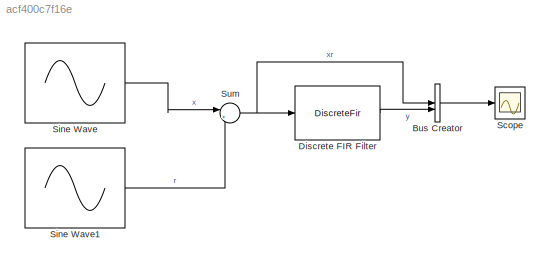
MODEL slx_acf400c7f16e
KIND model
CONFIG AbsTol = auto
CONFIG EnableMultiTasking = off
CONFIG FixedStep = Ts
CONFIG MaxStep = auto
CONFIG MinStep = auto
CONFIG RelTol = 1e-3
CONFIG SampleTimeConstraint = Unconstrained
CONFIG SolverName = FixedStepAuto
CONFIG StartTime = 0.0
CONFIG StopTime = 0.1
BLOCK [BusCreator] Bus Creator
  DisplayOption = bar
  InheritFromInputs = on
  Inputs = 2
BLOCK [DiscreteFir] Discrete FIR Filter
  Coefficients = filtro.Coefficients
  InputPortMap = u0
  OutputPortMap = o0
BLOCK [Scope] Scope
  Floating = off
  NumInputPorts = 1
  ScopeSpecificationString = Simulink.scopes.TimeScopeBlockCfg('CurrentConfiguration', extmgr.ConfigurationSet(extmgr.Configuration('Core','General UI',true),extmgr.Configuration('Core','Source UI',true),extmgr.Configuration('Sources','WiredSimulink',true),extmgr.Configuration('Visuals','Time Domain',true,'SerializedDisplays',{struct('MinYLimReal','-15.25064','MaxYLimReal','15.25064','YLabelReal','','MinYLimMag','0.00000','Ma...<+1387ch>
BLOCK [Sin] Sine Wave
  Amplitude = 10
  Frequency = 2*pi*60
  SampleTime = Ts
BLOCK [Sin] Sine Wave1
  Amplitude = 2.5
  Frequency = 2*pi*400
  SampleTime = Ts
BLOCK [Sum] Sum
  Inputs = |++
LINE Bus Creator:1 -> Scope:1
LINE Discrete FIR Filter:1 -> Bus Creator:2
LINE Sine Wave1:1 -> Sum:2
LINE Sine Wave:1 -> Sum:1
NET Sum:1 -> Bus Creator:1, Discrete FIR Filter:1
note: NET lines group one-source signal fan-out (src -> all destinations, sorted); 1:1 wires keep LINE
